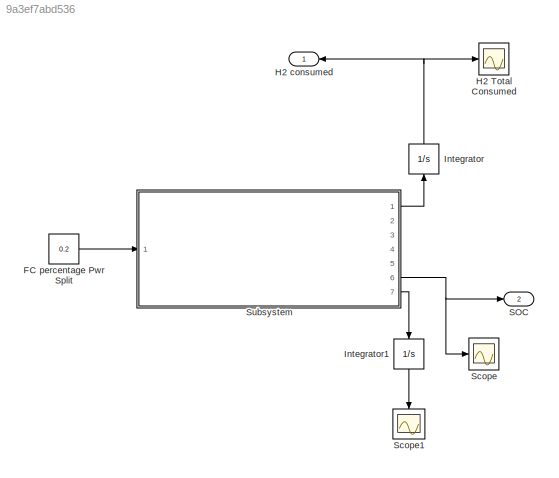
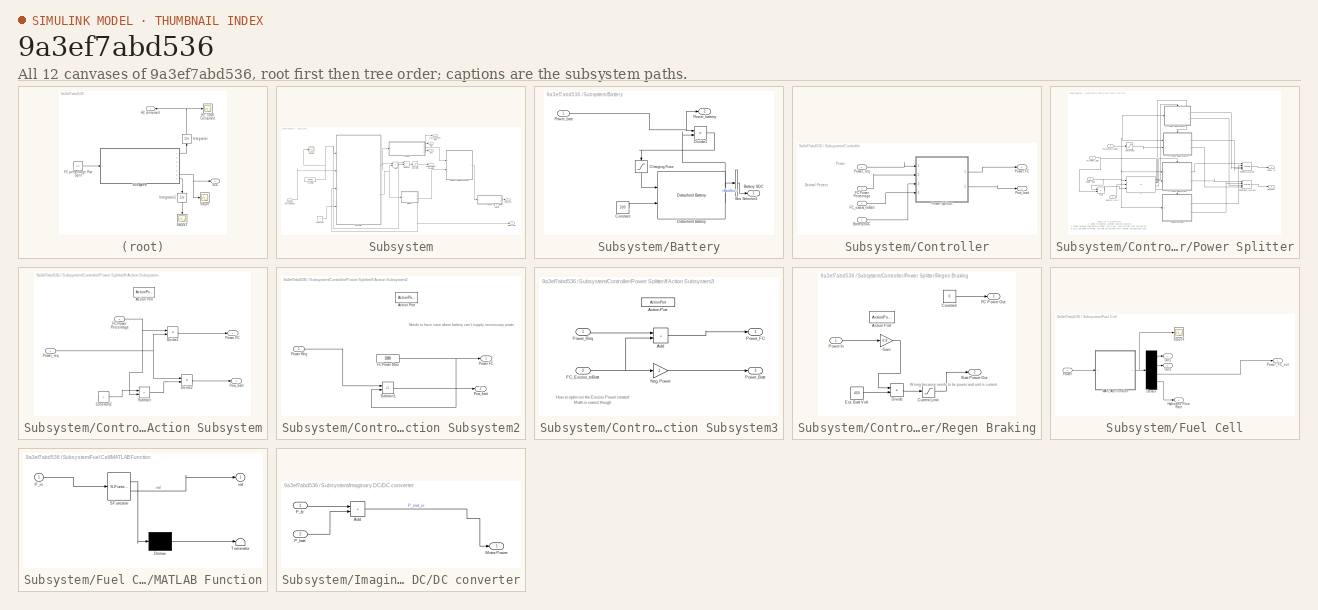
[diagram: thumbnail index - all 12 canvases of the model, root first then tree order]
MODEL slx_9a3ef7abd536
KIND model
CONFIG AbsTol = auto
CONFIG EnableMultiTasking = off
CONFIG FixedStep = auto
CONFIG MaxStep = auto
CONFIG MinStep = auto
CONFIG RelTol = 1e-3
CONFIG SampleTimeConstraint = Unconstrained
CONFIG Solver = VariableStepAuto
CONFIG SolverName = VariableStepAuto
CONFIG StartTime = 0.0
CONFIG StopTime = 360
BLOCK [Constant] FC percentage Pwr Split
  Value = 0.2
BLOCK [Scope] H2 Total Consumed
  Floating = off
  NumInputPorts = 1
  Ports = [1]
  ScopeSpecificationString = Simulink.scopes.TimeScopeBlockCfg('CurrentConfiguration', extmgr.ConfigurationSet(extmgr.Configuration('Core','General UI',true),extmgr.Configuration('Core','Source UI',true),extmgr.Configuration('Sources','WiredSimulink',true,'DataLoggingVariableName','ScopeData2'),extmgr.Configuration('Visuals','Time Domain',true,'SerializedDisplays',{struct('MinYLimReal','0','MaxYLimReal','1000','YLabelReal',''...<+1420ch>
BLOCK [Outport] H2 consumed
BLOCK [Integrator] Integrator
  NameLocation = right
  Ports = [1, 1]
BLOCK [Integrator] Integrator1
  NameLocation = left
  Ports = [1, 1]
BLOCK [Outport] SOC
  Port = 2
BLOCK [Scope] Scope
  Floating = off
  NumInputPorts = 1
  Ports = [1]
  ScopeSpecificationString = Simulink.scopes.TimeScopeBlockCfg('CurrentConfiguration', extmgr.ConfigurationSet(extmgr.Configuration('Core','General UI',true),extmgr.Configuration('Core','Source UI',true),extmgr.Configuration('Sources','WiredSimulink',true,'DataLoggingVariableName','ScopeData3'),extmgr.Configuration('Visuals','Time Domain',true,'SerializedDisplays',{struct('MinYLimReal','0','MaxYLimReal','1','YLabelReal','','M...<+1445ch>
BLOCK [Scope] Scope1
  Floating = off
  NameLocation = left
  NumInputPorts = 1
  Ports = [1]
  ScopeSpecificationString = Simulink.scopes.TimeScopeBlockCfg('CurrentConfiguration', extmgr.ConfigurationSet(extmgr.Configuration('Core','General UI',true),extmgr.Configuration('Core','Source UI',true),extmgr.Configuration('Sources','WiredSimulink',true,'DataLoggingVariableName','ScopeData4'),extmgr.Configuration('Visuals','Time Domain',true,'SerializedDisplays',{struct('MinYLimReal','-1.00000','MaxYLimReal','1.00000','YLab...<+1370ch>
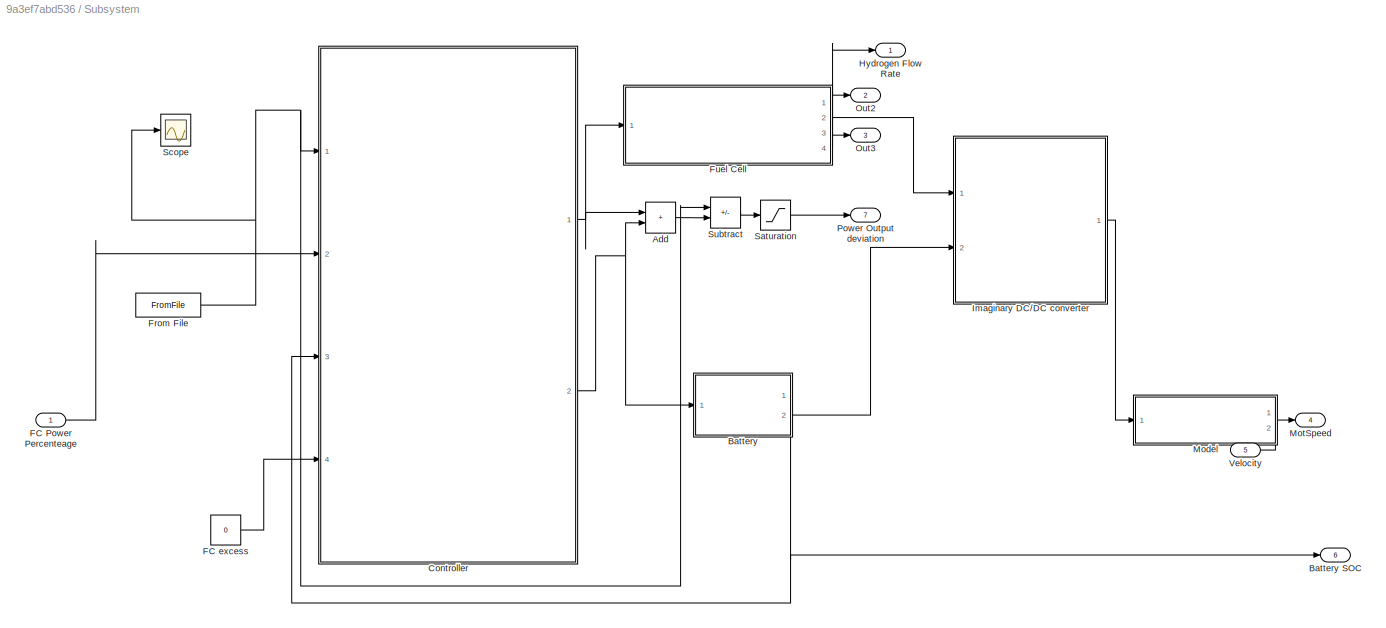
BLOCK [SubSystem] Subsystem
  Ports = [1, 7]
  RequestExecContextInheritance = off
BLOCK [Sum] Subsystem/Add
  IconShape = rectangular
  Ports = [2, 1]
BLOCK [SubSystem] Subsystem/Battery
  Ports = [1, 2]
  RequestExecContextInheritance = off
BLOCK [Outport] Subsystem/Battery SOC
  Port = 6
BLOCK [Outport] Subsystem/Battery/Battery SOC
BLOCK [BusSelector] Subsystem/Battery/Bus Selector1
  OutputSignals = BattSoc
  Ports = [1, 1]
BLOCK [Saturate] Subsystem/Battery/Charging Fuse
  LowerLimit = -20
  NameLocation = left
  UpperLimit = inf
BLOCK [Constant] Subsystem/Battery/Constant
  Value = 300
BLOCK [Reference] Subsystem/Battery/Datasheet Battery  REF=autolibdatasheetbattery/Datasheet Battery
  Ports = [2, 2]
  SourceBlock = autolibdatasheetbattery/Datasheet Battery
  SourceProductBaseCode = PW
  SourceType = Datasheet Battery
BLOCK [Product] Subsystem/Battery/Divide1
  Inputs = */
  Ports = [2, 1]
BLOCK [Inport] Subsystem/Battery/Power_batt
BLOCK [Outport] Subsystem/Battery/Power_battery
  Port = 2
BLOCK [SubSystem] Subsystem/Controller
  Ports = [4, 2]
  RequestExecContextInheritance = off
BLOCK [Inport] Subsystem/Controller/Battery SOC
  Port = 3
BLOCK [Inport] Subsystem/Controller/FC Power Percentage
  Port = 2
BLOCK [Inport] Subsystem/Controller/FC_excess_toBatt
  Port = 4
BLOCK [Outport] Subsystem/Controller/Pow_batt
  Port = 2
BLOCK [Outport] Subsystem/Controller/Power FC
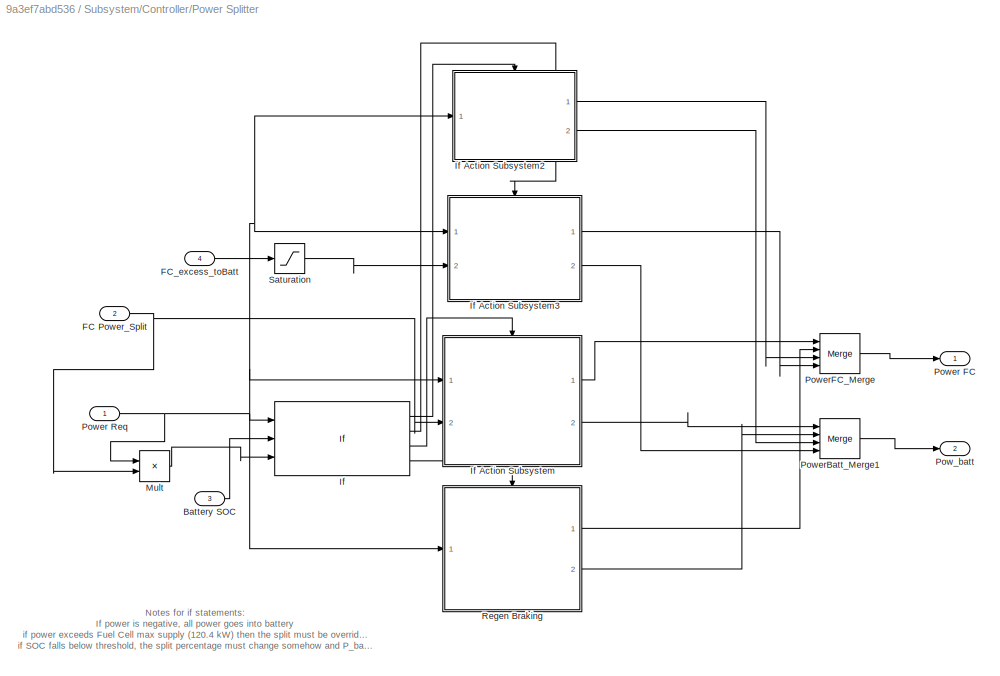
BLOCK [SubSystem] Subsystem/Controller/Power Splitter
  Ports = [4, 2]
  RequestExecContextInheritance = off
BLOCK [Inport] Subsystem/Controller/Power Splitter/Battery SOC
  Port = 3
BLOCK [Inport] Subsystem/Controller/Power Splitter/FC Power_Split
  Port = 2
BLOCK [Inport] Subsystem/Controller/Power Splitter/FC_excess_toBatt
  Port = 4
BLOCK [If] Subsystem/Controller/Power Splitter/If
  ElseIfExpressions = u2<=0.4,u1>=0
  IfExpression = (u3 >= 120400) & (u2>=0.4)
  NumInputs = 3
  Ports = [3, 4]
BLOCK [SubSystem] Subsystem/Controller/Power Splitter/If Action Subsystem
  Ports = [2, 2, 0, 0, 0, 0, 0, 1]
  RequestExecContextInheritance = off
  TreatAsAtomicUnit = on
BLOCK [ActionPort] Subsystem/Controller/Power Splitter/If Action Subsystem/Action Port
  ActionPortLabel = elseif(u1>=0)
BLOCK [Constant] Subsystem/Controller/Power Splitter/If Action Subsystem/Constant2
BLOCK [Product] Subsystem/Controller/Power Splitter/If Action Subsystem/Divide1
  Inputs = **
  Ports = [2, 1]
BLOCK [Product] Subsystem/Controller/Power Splitter/If Action Subsystem/Divide2
  Inputs = **
  Ports = [2, 1]
BLOCK [Inport] Subsystem/Controller/Power Splitter/If Action Subsystem/FC Power Percentage 
  Port = 2
BLOCK [Outport] Subsystem/Controller/Power Splitter/If Action Subsystem/Pow_batt
  Port = 2
BLOCK [Outport] Subsystem/Controller/Power Splitter/If Action Subsystem/Power FC
BLOCK [Inport] Subsystem/Controller/Power Splitter/If Action Subsystem/Power_req
BLOCK [Sum] Subsystem/Controller/Power Splitter/If Action Subsystem/Subtract
  IconShape = rectangular
  Inputs = +-
  Ports = [2, 1]
BLOCK [SubSystem] Subsystem/Controller/Power Splitter/If Action Subsystem2
  Ports = [1, 2, 0, 0, 0, 0, 0, 1]
  RequestExecContextInheritance = off
  TreatAsAtomicUnit = on
BLOCK [ActionPort] Subsystem/Controller/Power Splitter/If Action Subsystem2/Action Port
  ActionPortLabel = if((u3 >= 120400) & (u2>=0.4))
BLOCK [Constant] Subsystem/Controller/Power Splitter/If Action Subsystem2/FC Power Max
  Value = 120400
BLOCK [Outport] Subsystem/Controller/Power Splitter/If Action Subsystem2/Pow_batt
  Port = 2
BLOCK [Outport] Subsystem/Controller/Power Splitter/If Action Subsystem2/Power FC
BLOCK [Inport] Subsystem/Controller/Power Splitter/If Action Subsystem2/Power Req
BLOCK [Sum] Subsystem/Controller/Power Splitter/If Action Subsystem2/Subtract1
  IconShape = rectangular
  Inputs = +-
  Ports = [2, 1]
BLOCK [SubSystem] Subsystem/Controller/Power Splitter/If Action Subsystem3
  Ports = [2, 2, 0, 0, 0, 0, 0, 1]
  RequestExecContextInheritance = off
  TreatAsAtomicUnit = on
BLOCK [ActionPort] Subsystem/Controller/Power Splitter/If Action Subsystem3/Action Port
  ActionPortLabel = elseif(u2<=0.4)
BLOCK [Sum] Subsystem/Controller/Power Splitter/If Action Subsystem3/Add
  IconShape = rectangular
  Ports = [2, 1]
BLOCK [Inport] Subsystem/Controller/Power Splitter/If Action Subsystem3/FC_Excess_toBatt
  Port = 2
BLOCK [Gain] Subsystem/Controller/Power Splitter/If Action Subsystem3/Neg. Power
  Gain = -1
BLOCK [Outport] Subsystem/Controller/Power Splitter/If Action Subsystem3/Power_Batt
  Port = 2
BLOCK [Outport] Subsystem/Controller/Power Splitter/If Action Subsystem3/Power_FC
BLOCK [Inport] Subsystem/Controller/Power Splitter/If Action Subsystem3/Power_Req
BLOCK [Product] Subsystem/Controller/Power Splitter/Mult
  Inputs = **
  Ports = [2, 1]
BLOCK [Outport] Subsystem/Controller/Power Splitter/Pow_batt
  Port = 2
BLOCK [Outport] Subsystem/Controller/Power Splitter/Power FC
BLOCK [Inport] Subsystem/Controller/Power Splitter/Power Req
BLOCK [Merge] Subsystem/Controller/Power Splitter/PowerBatt_Merge1
  Inputs = 4
  Ports = [4, 1]
BLOCK [Merge] Subsystem/Controller/Power Splitter/PowerFC_Merge
  Inputs = 4
  Ports = [4, 1]
BLOCK [SubSystem] Subsystem/Controller/Power Splitter/Regen Braking
  Ports = [1, 2, 0, 0, 0, 0, 0, 1]
  RequestExecContextInheritance = off
  TreatAsAtomicUnit = on
BLOCK [ActionPort] Subsystem/Controller/Power Splitter/Regen Braking/Action Port
  ActionPortLabel = else
BLOCK [Outport] Subsystem/Controller/Power Splitter/Regen Braking/Batt Power Out
  Port = 2
BLOCK [Constant] Subsystem/Controller/Power Splitter/Regen Braking/Constant
  Value = 0
BLOCK [Saturate] Subsystem/Controller/Power Splitter/Regen Braking/Current Limit
  LowerLimit = -20
  UpperLimit = 0
BLOCK [Product] Subsystem/Controller/Power Splitter/Regen Braking/Divide
  Inputs = */
  Ports = [2, 1]
BLOCK [Constant] Subsystem/Controller/Power Splitter/Regen Braking/Est. Batt Volt
  Value = 400
BLOCK [Outport] Subsystem/Controller/Power Splitter/Regen Braking/FC Power Out
BLOCK [Gain] Subsystem/Controller/Power Splitter/Regen Braking/Gain
  Gain = 0.8
BLOCK [Inport] Subsystem/Controller/Power Splitter/Regen Braking/Power In
BLOCK [Saturate] Subsystem/Controller/Power Splitter/Saturation
  LowerLimit = 0
  UpperLimit = inf
BLOCK [Inport] Subsystem/Controller/Power_req
BLOCK [Inport] Subsystem/FC Power Percenteage
BLOCK [Constant] Subsystem/FC excess
  Value = 0
BLOCK [FromFile] Subsystem/From File
  ExtrapolationAfterLastDataPoint = Hold last value
  ExtrapolationBeforeFirstDataPoint = Hold first value
  FileName = Short_Sig2.mat
  InterpolationWithinTimeRange = Zero order hold
  SampleTime = 1
BLOCK [SubSystem] Subsystem/Fuel Cell
  Ports = [1, 4]
  RequestExecContextInheritance = off
BLOCK [Demux] Subsystem/Fuel Cell/Demux
  Ports = [1, 4]
BLOCK [Outport] Subsystem/Fuel Cell/Hydrogen Flow Rate
  Port = 4
BLOCK [SubSystem] Subsystem/Fuel Cell/MATLAB Function
  ErrorFcn = Stateflow.Translate.translate
  PermitHierarchicalResolution = ExplicitOnly
  Ports = [1, 1]
  RequestExecContextInheritance = off
  SFBlockType = MATLAB Function
  TreatAsAtomicUnit = on
BLOCK [Demux] Subsystem/Fuel Cell/MATLAB Function/ Demux 
  Outputs = 1
  Ports = [1, 1]
BLOCK [S-Function] Subsystem/Fuel Cell/MATLAB Function/ SFunction 
  EnableBusSupport = on
  FunctionName = sf_sfun
  PortCounts = [1 2]
  Ports = [1, 2]
  SFcnIsStateOwnerBlock = off
  SFunctionDeploymentMode = off
  Tag = Stateflow S-Function 2
BLOCK [Terminator] Subsystem/Fuel Cell/MATLAB Function/ Terminator 
BLOCK [Inport] Subsystem/Fuel Cell/MATLAB Function/P_in
BLOCK [Outport] Subsystem/Fuel Cell/MATLAB Function/val
BLOCK [Outport] Subsystem/Fuel Cell/Out1
BLOCK [Outport] Subsystem/Fuel Cell/Out3
  Port = 3
BLOCK [Inport] Subsystem/Fuel Cell/Power
BLOCK [Outport] Subsystem/Fuel Cell/Power_FC_out
  Port = 2
BLOCK [Scope] Subsystem/Fuel Cell/Scope4
  Floating = off
  NumInputPorts = 1
  Ports = [1]
  ScopeSpecificationString = Simulink.scopes.TimeScopeBlockCfg('CurrentConfiguration', extmgr.ConfigurationSet(extmgr.Configuration('Core','General UI',true),extmgr.Configuration('Core','Source UI',true),extmgr.Configuration('Sources','WiredSimulink',true,'DataLoggingVariableName','ScopeData3'),extmgr.Configuration('Visuals','Time Domain',true,'SerializedDisplays',{struct('MinYLimReal','-45.89212','MaxYLimReal','1233.97909','...<+1525ch>
BLOCK [Outport] Subsystem/Hydrogen Flow Rate
BLOCK [SubSystem] Subsystem/Imaginary DC//DC converter
  Ports = [2, 1]
  RequestExecContextInheritance = off
BLOCK [Sum] Subsystem/Imaginary DC//DC converter/Add
  IconShape = rectangular
  Ports = [2, 1]
BLOCK [Outport] Subsystem/Imaginary DC//DC converter/Motor Power
BLOCK [Inport] Subsystem/Imaginary DC//DC converter/P_batt
  Port = 2
BLOCK [Inport] Subsystem/Imaginary DC//DC converter/P_fc
BLOCK [ModelReference] Subsystem/Model
  Commented = on
  ModelNameDialog = Power_Model.slx
  ModelReferenceVersion = 1.20
  PortSchema = {"entries":[{"content":{"sides":[{"content":{"connectorIds":["In1"]},"type":"ConnectorPlacement.EquallySpacedRectSide","uuid":"2c404015-eff0-4c93-ac5e-9539bc24a122"},{"content":{"connectorIds":["Out2"],"side":"RIGHT"},"type":"ConnectorPlacement.EquallySpacedRectSide","uuid":"e336d8c9-6427-42a1-9e1d-a94430f306bf"},{"content":{"connectorIds":[],"side":"TOP"},"type":"ConnectorPlacement.EquallySpacedR...<+392ch>
  Ports = [1, 2]
BLOCK [Outport] Subsystem/MotSpeed
  Port = 4
BLOCK [Outport] Subsystem/Out2
  Port = 2
BLOCK [Outport] Subsystem/Out3
  Port = 3
BLOCK [Outport] Subsystem/Power Output deviation
  Port = 7
BLOCK [Saturate] Subsystem/Saturation
  LowerLimit = 0
  UpperLimit = inf
BLOCK [Scope] Subsystem/Scope
  Floating = off
  NumInputPorts = 1
  Ports = [1]
  ScopeSpecificationString = Simulink.scopes.TimeScopeBlockCfg('CurrentConfiguration', extmgr.ConfigurationSet(extmgr.Configuration('Core','General UI',true),extmgr.Configuration('Core','Source UI',true),extmgr.Configuration('Sources','WiredSimulink',true,'DataLoggingVariableName','ScopeData1'),extmgr.Configuration('Visuals','Time Domain',true,'SerializedDisplays',{struct('MinYLimReal','-112189.23047','MaxYLimReal','942966.60...<+1475ch>
BLOCK [Sum] Subsystem/Subtract
  IconShape = rectangular
  Inputs = +-
  Ports = [2, 1]
BLOCK [Outport] Subsystem/Velocity
  Port = 5
ANNOTATION Subsystem/Controller: Decimal Percent
ANNOTATION Subsystem/Controller: Power
ANNOTATION Subsystem/Controller/Power Splitter: Notes for if statements: If power is negative, all power goes into battery if power exceeds Fuel Cell max supply (120.4 kW) then the split must be overridden and battery makes up difference if SOC falls below threshold, the split percentage must change somehow and P_bat should be negative
ANNOTATION Subsystem/Controller/Power Splitter/If Action Subsystem2: Needs to have case where battery can't supply necesssary power
ANNOTATION Subsystem/Controller/Power Splitter/If Action Subsystem3: How to optimize the Excess Power created Math is correct though
ANNOTATION Subsystem/Controller/Power Splitter/Regen Braking: Wrong because needs to be power and unit is current
LINE FC percentage Pwr Split:1 -> Subsystem:1
LINE Integrator1:1 -> Scope1:1
NET Integrator:1 -> H2 Total Consumed:1, H2 consumed:1
LINE Subsystem/Add:1 -> Subsystem/Subtract:2
LINE Subsystem/Battery/Bus Selector1:1 -> Subsystem/Battery/Battery SOC:1
LINE Subsystem/Battery/Charging Fuse:1 -> Subsystem/Battery/Datasheet Battery:1
LINE Subsystem/Battery/Constant:1 -> Subsystem/Battery/Datasheet Battery:2
LINE Subsystem/Battery/Datasheet Battery:1 -> Subsystem/Battery/Bus Selector1:1
LINE Subsystem/Battery/Datasheet Battery:2 -> Subsystem/Battery/Divide1:2
LINE Subsystem/Battery/Divide1:1 -> Subsystem/Battery/Charging Fuse:1
NET Subsystem/Battery/Power_batt:1 -> Subsystem/Battery/Divide1:1, Subsystem/Battery/Power_battery:1
NET Subsystem/Battery:1 -> Subsystem/Battery SOC:1, Subsystem/Controller:3
LINE Subsystem/Battery:2 -> Subsystem/Imaginary DC//DC converter:2
LINE Subsystem/Controller/Battery SOC:1 -> Subsystem/Controller/Power Splitter:3
LINE Subsystem/Controller/FC Power Percentage:1 -> Subsystem/Controller/Power Splitter:2
LINE Subsystem/Controller/FC_excess_toBatt:1 -> Subsystem/Controller/Power Splitter:4
LINE Subsystem/Controller/Power Splitter/Battery SOC:1 -> Subsystem/Controller/Power Splitter/If:2
NET Subsystem/Controller/Power Splitter/FC Power_Split:1 -> Subsystem/Controller/Power Splitter/If Action Subsystem:2, Subsystem/Controller/Power Splitter/Mult:2
LINE Subsystem/Controller/Power Splitter/FC_excess_toBatt:1 -> Subsystem/Controller/Power Splitter/Saturation:1
LINE Subsystem/Controller/Power Splitter/If Action Subsystem/Constant2:1 -> Subsystem/Controller/Power Splitter/If Action Subsystem/Subtract:1
LINE Subsystem/Controller/Power Splitter/If Action Subsystem/Divide1:1 -> Subsystem/Controller/Power Splitter/If Action Subsystem/Power FC:1
LINE Subsystem/Controller/Power Splitter/If Action Subsystem/Divide2:1 -> Subsystem/Controller/Power Splitter/If Action Subsystem/Pow_batt:1
NET Subsystem/Controller/Power Splitter/If Action Subsystem/FC Power Percentage :1 -> Subsystem/Controller/Power Splitter/If Action Subsystem/Divide1:1, Subsystem/Controller/Power Splitter/If Action Subsystem/Subtract:2
NET Subsystem/Controller/Power Splitter/If Action Subsystem/Power_req:1 -> Subsystem/Controller/Power Splitter/If Action Subsystem/Divide1:2, Subsystem/Controller/Power Splitter/If Action Subsystem/Divide2:1
LINE Subsystem/Controller/Power Splitter/If Action Subsystem/Subtract:1 -> Subsystem/Controller/Power Splitter/If Action Subsystem/Divide2:2
NET Subsystem/Controller/Power Splitter/If Action Subsystem2/FC Power Max:1 -> Subsystem/Controller/Power Splitter/If Action Subsystem2/Power FC:1, Subsystem/Controller/Power Splitter/If Action Subsystem2/Subtract1:2
LINE Subsystem/Controller/Power Splitter/If Action Subsystem2/Power Req:1 -> Subsystem/Controller/Power Splitter/If Action Subsystem2/Subtract1:1
LINE Subsystem/Controller/Power Splitter/If Action Subsystem2/Subtract1:1 -> Subsystem/Controller/Power Splitter/If Action Subsystem2/Pow_batt:1
LINE Subsystem/Controller/Power Splitter/If Action Subsystem2:1 -> Subsystem/Controller/Power Splitter/PowerFC_Merge:3
LINE Subsystem/Controller/Power Splitter/If Action Subsystem2:2 -> Subsystem/Controller/Power Splitter/PowerBatt_Merge1:3
LINE Subsystem/Controller/Power Splitter/If Action Subsystem3/Add:1 -> Subsystem/Controller/Power Splitter/If Action Subsystem3/Power_FC:1
NET Subsystem/Controller/Power Splitter/If Action Subsystem3/FC_Excess_toBatt:1 -> Subsystem/Controller/Power Splitter/If Action Subsystem3/Add:2, Subsystem/Controller/Power Splitter/If Action Subsystem3/Neg. Power:1
LINE Subsystem/Controller/Power Splitter/If Action Subsystem3/Neg. Power:1 -> Subsystem/Controller/Power Splitter/If Action Subsystem3/Power_Batt:1
LINE Subsystem/Controller/Power Splitter/If Action Subsystem3/Power_Req:1 -> Subsystem/Controller/Power Splitter/If Action Subsystem3/Add:1
LINE Subsystem/Controller/Power Splitter/If Action Subsystem3:1 -> Subsystem/Controller/Power Splitter/PowerFC_Merge:4
LINE Subsystem/Controller/Power Splitter/If Action Subsystem3:2 -> Subsystem/Controller/Power Splitter/PowerBatt_Merge1:4
LINE Subsystem/Controller/Power Splitter/If Action Subsystem:1 -> Subsystem/Controller/Power Splitter/PowerFC_Merge:1
LINE Subsystem/Controller/Power Splitter/If Action Subsystem:2 -> Subsystem/Controller/Power Splitter/PowerBatt_Merge1:1
LINE Subsystem/Controller/Power Splitter/If:1 -> Subsystem/Controller/Power Splitter/If Action Subsystem2:ifaction
LINE Subsystem/Controller/Power Splitter/If:2 -> Subsystem/Controller/Power Splitter/If Action Subsystem3:ifaction
LINE Subsystem/Controller/Power Splitter/If:3 -> Subsystem/Controller/Power Splitter/If Action Subsystem:ifaction
LINE Subsystem/Controller/Power Splitter/If:4 -> Subsystem/Controller/Power Splitter/Regen Braking:ifaction
LINE Subsystem/Controller/Power Splitter/Mult:1 -> Subsystem/Controller/Power Splitter/If:3
NET Subsystem/Controller/Power Splitter/Power Req:1 -> Subsystem/Controller/Power Splitter/If Action Subsystem2:1, Subsystem/Controller/Power Splitter/If Action Subsystem3:1, Subsystem/Controller/Power Splitter/If Action Subsystem:1, Subsystem/Controller/Power Splitter/If:1, Subsystem/Controller/Power Splitter/Mult:1, Subsystem/Controller/Power Splitter/Regen Braking:1
LINE Subsystem/Controller/Power Splitter/PowerBatt_Merge1:1 -> Subsystem/Controller/Power Splitter/Pow_batt:1
LINE Subsystem/Controller/Power Splitter/PowerFC_Merge:1 -> Subsystem/Controller/Power Splitter/Power FC:1
LINE Subsystem/Controller/Power Splitter/Regen Braking/Constant:1 -> Subsystem/Controller/Power Splitter/Regen Braking/FC Power Out:1
LINE Subsystem/Controller/Power Splitter/Regen Braking/Current Limit:1 -> Subsystem/Controller/Power Splitter/Regen Braking/Batt Power Out:1
LINE Subsystem/Controller/Power Splitter/Regen Braking/Divide:1 -> Subsystem/Controller/Power Splitter/Regen Braking/Current Limit:1
LINE Subsystem/Controller/Power Splitter/Regen Braking/Est. Batt Volt:1 -> Subsystem/Controller/Power Splitter/Regen Braking/Divide:2
LINE Subsystem/Controller/Power Splitter/Regen Braking/Gain:1 -> Subsystem/Controller/Power Splitter/Regen Braking/Divide:1
LINE Subsystem/Controller/Power Splitter/Regen Braking/Power In:1 -> Subsystem/Controller/Power Splitter/Regen Braking/Gain:1
LINE Subsystem/Controller/Power Splitter/Regen Braking:1 -> Subsystem/Controller/Power Splitter/PowerFC_Merge:2
LINE Subsystem/Controller/Power Splitter/Regen Braking:2 -> Subsystem/Controller/Power Splitter/PowerBatt_Merge1:2
LINE Subsystem/Controller/Power Splitter/Saturation:1 -> Subsystem/Controller/Power Splitter/If Action Subsystem3:2
LINE Subsystem/Controller/Power Splitter:1 -> Subsystem/Controller/Power FC:1
LINE Subsystem/Controller/Power Splitter:2 -> Subsystem/Controller/Pow_batt:1
LINE Subsystem/Controller/Power_req:1 -> Subsystem/Controller/Power Splitter:1
NET Subsystem/Controller:1 -> Subsystem/Add:1, Subsystem/Fuel Cell:1
NET Subsystem/Controller:2 -> Subsystem/Add:2, Subsystem/Battery:1
LINE Subsystem/FC Power Percenteage:1 -> Subsystem/Controller:2
LINE Subsystem/FC excess:1 -> Subsystem/Controller:4
NET Subsystem/From File:1 -> Subsystem/Controller:1, Subsystem/Scope:1, Subsystem/Subtract:1
LINE Subsystem/Fuel Cell/Demux:1 -> Subsystem/Fuel Cell/Out1:1
LINE Subsystem/Fuel Cell/Demux:2 -> Subsystem/Fuel Cell/Out3:1
LINE Subsystem/Fuel Cell/Demux:3 -> Subsystem/Fuel Cell/Power_FC_out:1
LINE Subsystem/Fuel Cell/Demux:4 -> Subsystem/Fuel Cell/Hydrogen Flow Rate:1
NET Subsystem/Fuel Cell/MATLAB Function:1 -> Subsystem/Fuel Cell/Demux:1, Subsystem/Fuel Cell/Scope4:1
LINE Subsystem/Fuel Cell/Power:1 -> Subsystem/Fuel Cell/MATLAB Function:1
LINE Subsystem/Fuel Cell:1 -> Subsystem/Out2:1
LINE Subsystem/Fuel Cell:2 -> Subsystem/Imaginary DC//DC converter:1
LINE Subsystem/Fuel Cell:3 -> Subsystem/Out3:1
LINE Subsystem/Fuel Cell:4 -> Subsystem/Hydrogen Flow Rate:1
LINE Subsystem/Imaginary DC//DC converter/Add:1 -> Subsystem/Imaginary DC//DC converter/Motor Power:1
LINE Subsystem/Imaginary DC//DC converter/P_batt:1 -> Subsystem/Imaginary DC//DC converter/Add:2
LINE Subsystem/Imaginary DC//DC converter/P_fc:1 -> Subsystem/Imaginary DC//DC converter/Add:1
LINE Subsystem/Imaginary DC//DC converter:1 -> Subsystem/Model:1
LINE Subsystem/Model:1 -> Subsystem/Velocity:1
LINE Subsystem/Model:2 -> Subsystem/MotSpeed:1
LINE Subsystem/Saturation:1 -> Subsystem/Power Output deviation:1
LINE Subsystem/Subtract:1 -> Subsystem/Saturation:1
LINE Subsystem:1 -> Integrator:1
NET Subsystem:6 -> SOC:1, Scope:1
LINE Subsystem:7 -> Integrator1:1
note: NET lines group one-source signal fan-out (src -> all destinations, sorted); 1:1 wires keep LINE
CHART Subsystem/Fuel Cell/MATLAB Function states=1 transitions=1
  STATE_LABEL 'eML_blk_kernel()'
  STATE_LABEL 'SCRIPT:\nfunction val = fuel_cell_map_vals(P_in)\nN=900; %Number of cells in fuel cell\nM=2; % Molar mass of Hydrogen\nexcess_lambda = 1.2; % Excess Hydrogen ratio\n\nV = [900, 842.690414515993, 806.420580084826, 784.432402993841, 768.291434042714, 755.354408376177, 744.443945340785,...\n    734.931994240399, 726.443664778714, 718.737145027913, 711.647327501233, 705.056447748431, 698.877552854897, 693.04...<+3608ch>'
CHART  states=0 transitions=0
